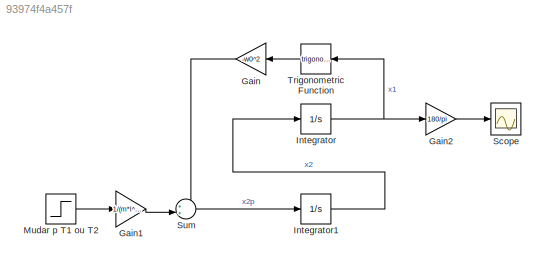
MODEL slx_93974f4a457f
KIND model
CONFIG AbsTol = auto
CONFIG EnableMultiTasking = off
CONFIG FixedStep = auto
CONFIG MaxStep = auto
CONFIG MinStep = auto
CONFIG RelTol = 1e-3
CONFIG SampleTimeConstraint = Unconstrained
CONFIG SolverName = VariableStepAuto
CONFIG StartTime = 0.0
CONFIG StopTime = 10.0
BLOCK [Gain] Gain
  Gain = -w0^2
  NameLocation = top
BLOCK [Gain] Gain1
  Gain = 1/(m*l^2)
BLOCK [Gain] Gain2
  Gain = 180/pi
BLOCK [Integrator] Integrator
  Ports = [1, 1]
BLOCK [Integrator] Integrator1
  Ports = [1, 1]
BLOCK [Step] Mudar p T1 ou T2
  After = T2
  SampleTime = 0
BLOCK [Scope] Scope
  Floating = off
  NumInputPorts = 1
  Ports = [1]
  ScopeSpecificationString = Simulink.scopes.TimeScopeBlockCfg('CurrentConfiguration', extmgr.ConfigurationSet(extmgr.Configuration('Core','General UI',true),extmgr.Configuration('Core','Source UI',true),extmgr.Configuration('Sources','WiredSimulink',true),extmgr.Configuration('Visuals','Time Domain',true,'SerializedDisplays',{struct('MinYLimReal','-7.82609','MaxYLimReal','70.43485','YLabelReal','','MinYLimMag','0.00000','Max...<+1357ch>
BLOCK [Sum] Sum
  Inputs = ++|
  Ports = [2, 1]
BLOCK [Trigonometry] Trigonometric Function
  NameLocation = top
  Ports = [1, 1]
LINE Gain1:1 -> Sum:2
LINE Gain2:1 -> Scope:1
LINE Gain:1 -> Sum:1
LINE Integrator1:1 -> Integrator:1
NET Integrator:1 -> Gain2:1, Trigonometric Function:1
LINE Mudar p T1 ou T2:1 -> Gain1:1
LINE Sum:1 -> Integrator1:1
LINE Trigonometric Function:1 -> Gain:1
note: NET lines group one-source signal fan-out (src -> all destinations, sorted); 1:1 wires keep LINE
